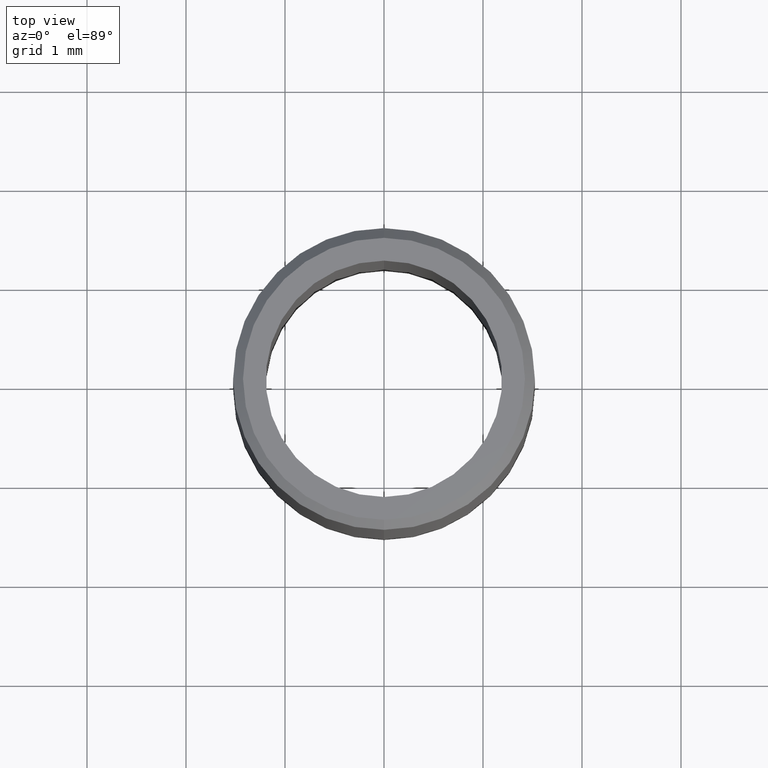
[diagram: clean part render]
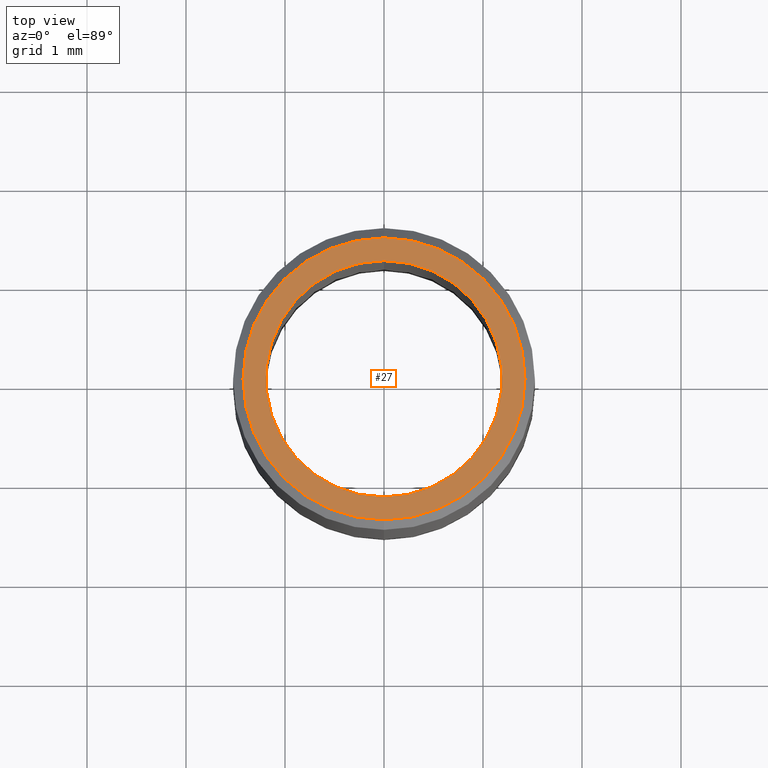
[diagram: same view with one face highlighted and labeled with its STEP entity id]
A machine part, top view. The second image highlights one B-rep face of the part: STEP entity #27.
In plain terms, the highlighted planar face has unit normal (0, 0, 1).
Its self-contained STEP definition (entity closure, byte-faithful):
#21=FACE_BOUND('',#43,.F.);
#23=PLANE('',#184);
#27=ADVANCED_FACE('',(#21,#35),#23,.T.);
#35=FACE_OUTER_BOUND('',#44,.F.);
#43=EDGE_LOOP('',(#59,#60));
#44=EDGE_LOOP('',(#61,#62));
#59=ORIENTED_EDGE('',*,*,#118,.T.);
#60=ORIENTED_EDGE('',*,*,#111,.T.);
#61=ORIENTED_EDGE('',*,*,#110,.F.);
#62=ORIENTED_EDGE('',*,*,#107,.F.);
#107=EDGE_CURVE('',#142,#141,#123,.T.);
#110=EDGE_CURVE('',#141,#142,#126,.T.);
#111=EDGE_CURVE('',#138,#137,#127,.T.);
#118=EDGE_CURVE('',#137,#138,#130,.T.);
#123=CIRCLE('',#172,1.424);
#126=CIRCLE('',#175,1.424);
#127=CIRCLE('',#176,1.1938);
#130=CIRCLE('',#179,1.1938);
#137=VERTEX_POINT('',#248);
#138=VERTEX_POINT('',#249);
#141=VERTEX_POINT('',#252);
#142=VERTEX_POINT('',#253);
#172=AXIS2_PLACEMENT_3D('',#254,#196,#197);
#175=AXIS2_PLACEMENT_3D('',#257,#202,#203);
#176=AXIS2_PLACEMENT_3D('',#258,#204,#205);
#179=AXIS2_PLACEMENT_3D('',#265,#214,#215);
#184=AXIS2_PLACEMENT_3D('',#272,#226,#227);
#196=DIRECTION('',(0.,0.,1.));
#197=DIRECTION('',(0.,-1.,0.));
#202=DIRECTION('',(0.,0.,1.));
#203=DIRECTION('',(0.,1.,0.));
#204=DIRECTION('',(0.,0.,1.));
#205=DIRECTION('',(0.,1.,0.));
#214=DIRECTION('',(0.,0.,1.));
#215=DIRECTION('',(0.,-1.,0.));
#226=DIRECTION('',(0.,0.,1.));
#227=DIRECTION('',(1.,0.,0.));
#248=CARTESIAN_POINT('',(0.,-1.1938,0.));
#249=CARTESIAN_POINT('',(0.,1.1938,0.));
#252=CARTESIAN_POINT('',(0.,1.424,0.));
#253=CARTESIAN_POINT('',(0.,-1.424,0.));
#254=CARTESIAN_POINT('',(0.,0.,0.));
#257=CARTESIAN_POINT('',(0.,0.,0.));
#258=CARTESIAN_POINT('',(0.,0.,0.));
#265=CARTESIAN_POINT('',(0.,0.,0.));
#272=CARTESIAN_POINT('',(-1.524,-1.524,0.));